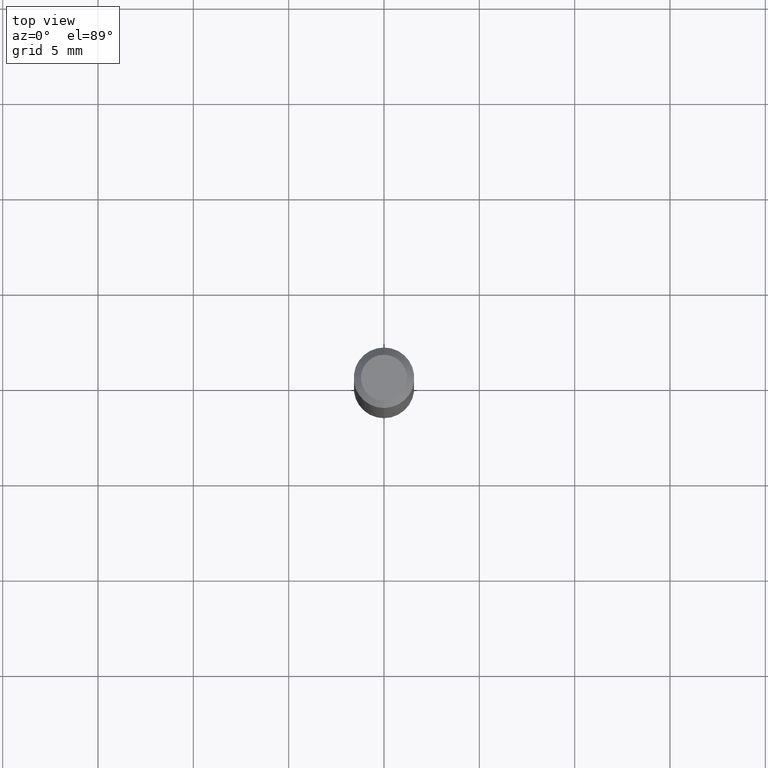
[diagram: clean part render]
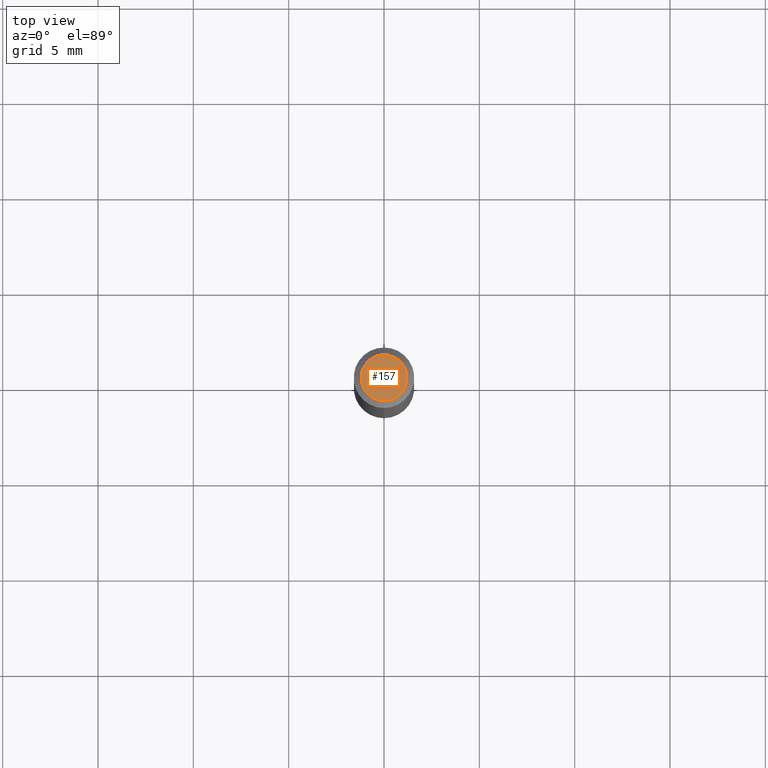
[diagram: same view with one face highlighted and labeled with its STEP entity id]
A machine part, top view. The second image highlights one B-rep face of the part: STEP entity #157.
In plain terms, the highlighted planar face has unit normal (0, -0, -1).
Its self-contained STEP definition (entity closure, byte-faithful):
#4 = CARTESIAN_POINT ( 'NONE',  ( 8.758191564929115309E-45, -1.250185265265728213E-30, -3.581034872216010807E-16 ) ) ;
#10 = VERTEX_POINT ( 'NONE', #338 ) ;
#43 = EDGE_CURVE ( 'NONE', #378, #10, #366, .T. ) ;
#63 = AXIS2_PLACEMENT_3D ( 'NONE', #466, #149, #276 ) ;
#78 = DIRECTION ( 'NONE',  ( -6.982962677686265133E-15, -1.000000000000000000, 3.491128430402830124E-15 ) ) ;
#91 = CARTESIAN_POINT ( 'NONE',  ( -3.773273898774342241E-16, -0.04750000000000004219, -1.922748867774664941E-16 ) ) ;
#105 = PLANE ( 'NONE',  #63 ) ;
#109 = CARTESIAN_POINT ( 'NONE',  ( 8.758191564929115309E-45, -1.250185265265728213E-30, -3.581034872216010807E-16 ) ) ;
#134 = ORIENTED_EDGE ( 'NONE', *, *, #43, .T. ) ;
#149 = DIRECTION ( 'NONE',  ( 2.445715240831872622E-29, -3.491128430402830124E-15, -1.000000000000000000 ) ) ;
#157 = ADVANCED_FACE ( 'NONE', ( #187 ), #105, .F. ) ;
#170 = AXIS2_PLACEMENT_3D ( 'NONE', #4, #201, #371 ) ;
#187 = FACE_OUTER_BOUND ( 'NONE', #219, .T. ) ;
#201 = DIRECTION ( 'NONE',  ( -2.445715240831873182E-29, 3.491128430402830124E-15, 1.000000000000000000 ) ) ;
#219 = EDGE_LOOP ( 'NONE', ( #442, #134 ) ) ;
#229 = DIRECTION ( 'NONE',  ( -2.445715240831873182E-29, 3.491128430402830124E-15, 1.000000000000000000 ) ) ;
#258 = EDGE_CURVE ( 'NONE', #10, #378, #438, .T. ) ;
#276 = DIRECTION ( 'NONE',  ( 6.982962677686265922E-15, 1.000000000000000000, -3.491128430402830124E-15 ) ) ;
#338 = CARTESIAN_POINT ( 'NONE',  ( 3.840629472727450339E-16, 0.04750000000000004219, -5.239320876657356674E-16 ) ) ;
#366 = CIRCLE ( 'NONE', #427, 0.04750000000000004219 ) ;
#371 = DIRECTION ( 'NONE',  ( -6.982962677686265133E-15, -1.000000000000000000, 3.491128430402830124E-15 ) ) ;
#378 = VERTEX_POINT ( 'NONE', #91 ) ;
#427 = AXIS2_PLACEMENT_3D ( 'NONE', #109, #229, #78 ) ;
#438 = CIRCLE ( 'NONE', #170, 0.04750000000000004219 ) ;
#442 = ORIENTED_EDGE ( 'NONE', *, *, #258, .T. ) ;
#466 = CARTESIAN_POINT ( 'NONE',  ( 3.316907271900979054E-16, 0.04750000000000004219, -3.448803440549351024E-16 ) ) ;